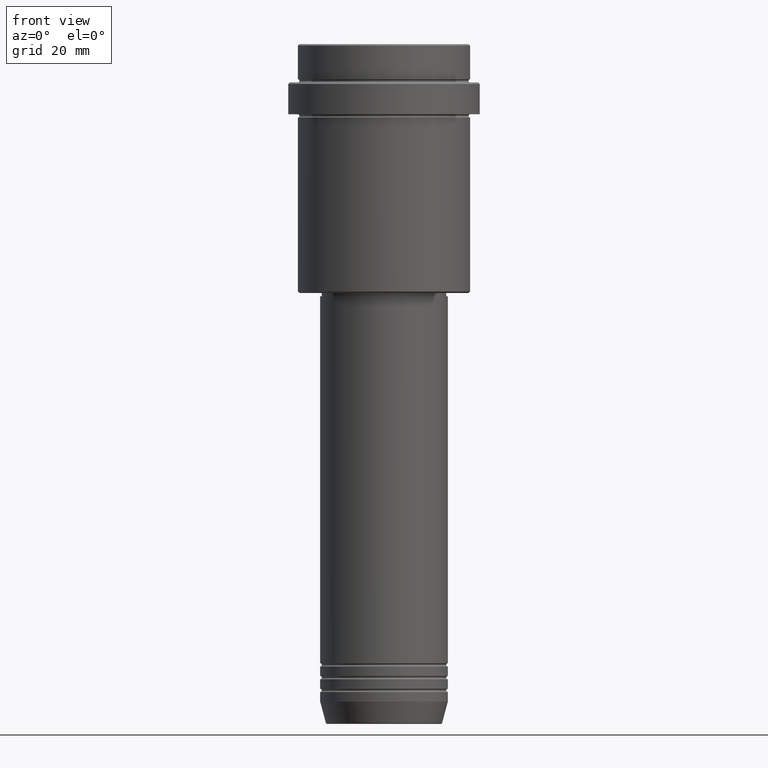
[diagram: clean part render]
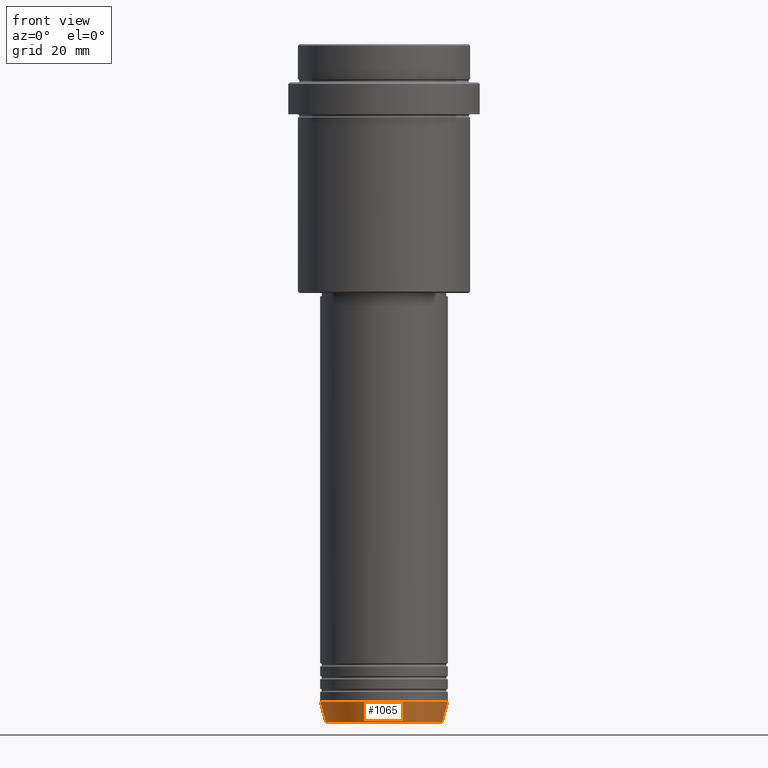
[diagram: same view with one face highlighted and labeled with its STEP entity id]
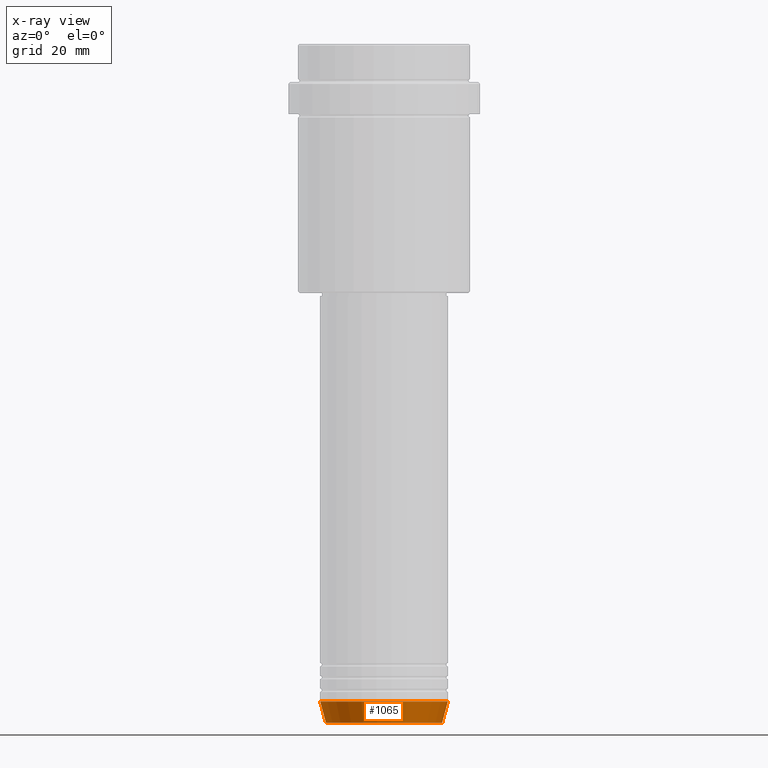
[diagram: x-ray of the same camera — body ghosted, the highlighted face saturated]
A machine part, front view. The second image highlights one B-rep face of the part: STEP entity #1065.
The next image is the same camera in x-ray: the body ghosted, the highlighted face saturated — about 0% of this face is hidden behind the body in this view.
In plain terms, the highlighted conical surface has half-angle 15 deg.
Its self-contained STEP definition (entity closure, byte-faithful):
#35 = CIRCLE ( 'NONE', #563, 18.22365507213718772 ) ;
#36 = DIRECTION ( 'NONE',  ( 0.2588190451025213501, 0.000000000000000000, 0.9659258262890680902 ) ) ;
#61 = ORIENTED_EDGE ( 'NONE', *, *, #1268, .T. ) ;
#75 = CARTESIAN_POINT ( 'NONE',  ( 0.000000000000000000, 0.000000000000000000, -206.0000000000000284 ) ) ;
#105 = LINE ( 'NONE', #302, #584 ) ;
#127 = VERTEX_POINT ( 'NONE', #337 ) ;
#154 = CONICAL_SURFACE ( 'NONE', #1129, 20.00000000000000000, 0.2617993877991500740 ) ;
#216 = FACE_OUTER_BOUND ( 'NONE', #255, .T. ) ;
#254 = EDGE_CURVE ( 'NONE', #1005, #127, #428, .T. ) ;
#255 = EDGE_LOOP ( 'NONE', ( #1074, #490, #61, #959 ) ) ;
#280 = CARTESIAN_POINT ( 'NONE',  ( -20.00000000000000000, 2.449293598294706513E-15, -206.0000000000000284 ) ) ;
#302 = CARTESIAN_POINT ( 'NONE',  ( -20.00000000000000000, 2.449293598294706513E-15, -206.0000000000000284 ) ) ;
#337 = CARTESIAN_POINT ( 'NONE',  ( 20.00000000000000000, 0.000000000000000000, -206.0000000000000284 ) ) ;
#341 = VERTEX_POINT ( 'NONE', #1138 ) ;
#414 = DIRECTION ( 'NONE',  ( 1.000000000000000000, 0.000000000000000000, 0.000000000000000000 ) ) ;
#419 = EDGE_CURVE ( 'NONE', #916, #1005, #105, .T. ) ;
#428 = CIRCLE ( 'NONE', #1077, 20.00000000000000000 ) ;
#490 = ORIENTED_EDGE ( 'NONE', *, *, #537, .T. ) ;
#537 = EDGE_CURVE ( 'NONE', #916, #341, #35, .T. ) ;
#538 = DIRECTION ( 'NONE',  ( 1.000000000000000000, 0.000000000000000000, 0.000000000000000000 ) ) ;
#563 = AXIS2_PLACEMENT_3D ( 'NONE', #625, #1189, #538 ) ;
#584 = VECTOR ( 'NONE', #1280, 1000.000000000000000 ) ;
#610 = VECTOR ( 'NONE', #36, 1000.000000000000000 ) ;
#625 = CARTESIAN_POINT ( 'NONE',  ( 0.000000000000000000, 0.000000000000000000, -212.6294095225512706 ) ) ;
#693 = CARTESIAN_POINT ( 'NONE',  ( 20.00000000000000000, 0.000000000000000000, -206.0000000000000284 ) ) ;
#819 = DIRECTION ( 'NONE',  ( 1.000000000000000000, 0.000000000000000000, 0.000000000000000000 ) ) ;
#916 = VERTEX_POINT ( 'NONE', #1217 ) ;
#959 = ORIENTED_EDGE ( 'NONE', *, *, #254, .F. ) ;
#1005 = VERTEX_POINT ( 'NONE', #280 ) ;
#1029 = DIRECTION ( 'NONE',  ( -0.000000000000000000, -0.000000000000000000, 1.000000000000000000 ) ) ;
#1044 = CARTESIAN_POINT ( 'NONE',  ( 0.000000000000000000, 0.000000000000000000, -206.0000000000000284 ) ) ;
#1065 = ADVANCED_FACE ( 'NONE', ( #216 ), #154, .T. ) ;
#1074 = ORIENTED_EDGE ( 'NONE', *, *, #419, .F. ) ;
#1077 = AXIS2_PLACEMENT_3D ( 'NONE', #1044, #1029, #819 ) ;
#1129 = AXIS2_PLACEMENT_3D ( 'NONE', #75, #1384, #414 ) ;
#1138 = CARTESIAN_POINT ( 'NONE',  ( 18.22365507213718772, 0.000000000000000000, -212.6294095225512706 ) ) ;
#1189 = DIRECTION ( 'NONE',  ( -0.000000000000000000, -0.000000000000000000, 1.000000000000000000 ) ) ;
#1217 = CARTESIAN_POINT ( 'NONE',  ( -18.22365507213718772, 2.340523841790264718E-15, -212.6294095225512706 ) ) ;
#1268 = EDGE_CURVE ( 'NONE', #341, #127, #1354, .T. ) ;
#1280 = DIRECTION ( 'NONE',  ( -0.2588190451025213501, 3.169619151431772337E-17, 0.9659258262890680902 ) ) ;
#1354 = LINE ( 'NONE', #693, #610 ) ;
#1384 = DIRECTION ( 'NONE',  ( -0.000000000000000000, -0.000000000000000000, 1.000000000000000000 ) ) ;